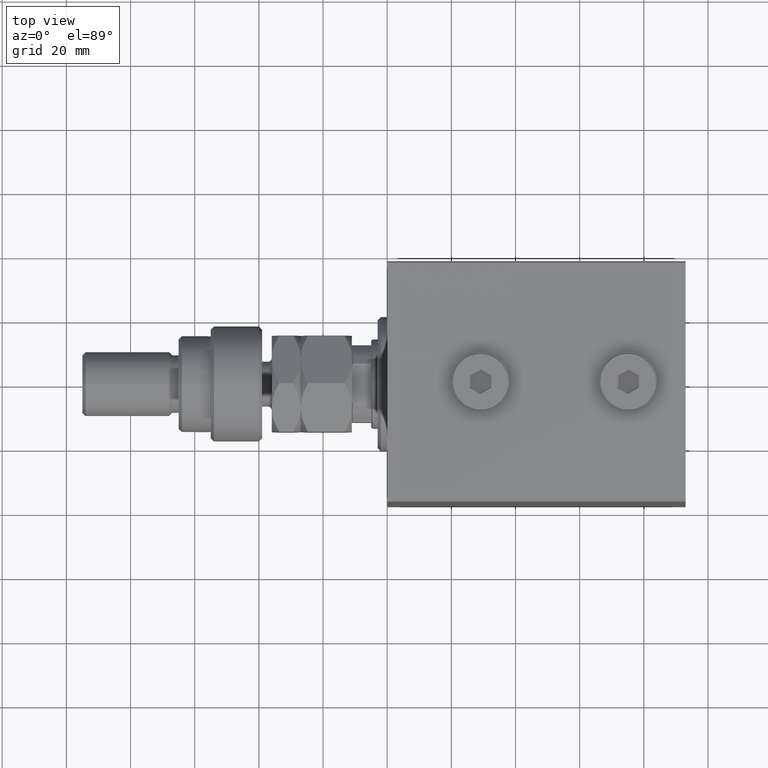
[diagram: clean part render]
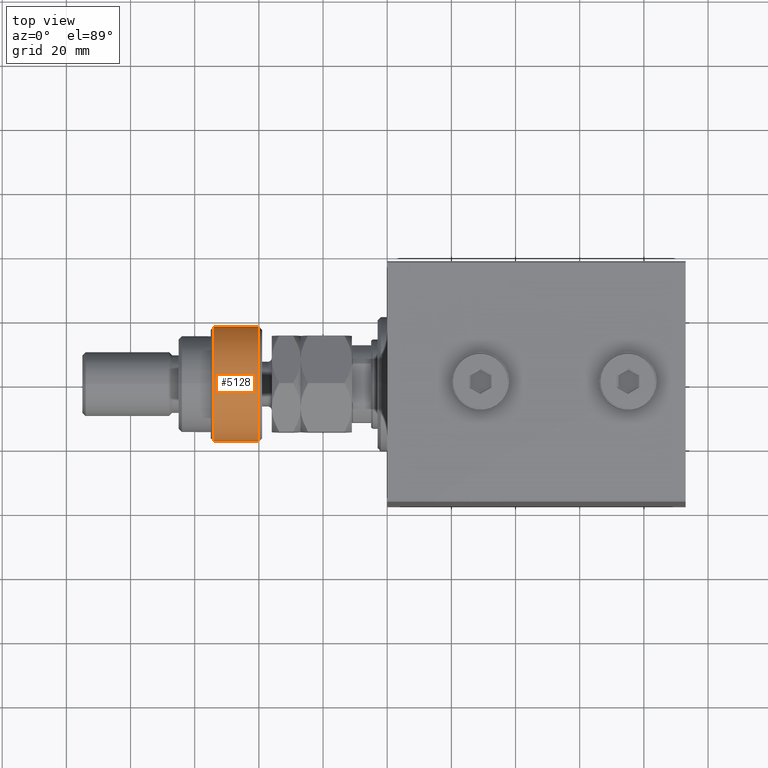
[diagram: same view with one face highlighted and labeled with its STEP entity id]
A machine part, top view. The second image highlights one B-rep face of the part: STEP entity #5128.
In plain terms, the highlighted cylindrical surface (partial cylindrical patch) has radius 18 mm, axis along (1, -0, -0).
Its self-contained STEP definition (entity closure, byte-faithful):
#2084 = VERTEX_POINT ( 'NONE', #22295 ) ;
#2465 = VECTOR ( 'NONE', #42803, 1000.000000000000000 ) ;
#5128 = ADVANCED_FACE ( 'NONE', ( #15944 ), #30840, .T. ) ;
#5793 = ORIENTED_EDGE ( 'NONE', *, *, #16625, .T. ) ;
#6072 = ORIENTED_EDGE ( 'NONE', *, *, #21247, .T. ) ;
#7897 = AXIS2_PLACEMENT_3D ( 'NONE', #10139, #25299, #25056 ) ;
#8398 = DIRECTION ( 'NONE',  ( 1.000000000000000000, 0.000000000000000000, 0.000000000000000000 ) ) ;
#10139 = CARTESIAN_POINT ( 'NONE',  ( 0.000000000000000000, 0.000000000000000000, 1.000000000000011324 ) ) ;
#12302 = CARTESIAN_POINT ( 'NONE',  ( 0.000000000000000000, 0.000000000000000000, 1.000000000000011324 ) ) ;
#12568 = CIRCLE ( 'NONE', #7897, 18.00000000000000000 ) ;
#13232 = DIRECTION ( 'NONE',  ( -1.000000000000000000, 0.000000000000000000, 0.000000000000000000 ) ) ;
#14687 = EDGE_CURVE ( 'NONE', #25025, #2084, #47629, .T. ) ;
#15648 = VECTOR ( 'NONE', #41561, 1000.000000000000000 ) ;
#15944 = FACE_OUTER_BOUND ( 'NONE', #25736, .T. ) ;
#16625 = EDGE_CURVE ( 'NONE', #2084, #38325, #33506, .T. ) ;
#17173 = CARTESIAN_POINT ( 'NONE',  ( -16.36306817195357155, 7.500000000000000000, 1.000000000000011324 ) ) ;
#17716 = ORIENTED_EDGE ( 'NONE', *, *, #14687, .T. ) ;
#20064 = DIRECTION ( 'NONE',  ( 1.000000000000000000, 0.000000000000000000, 0.000000000000000000 ) ) ;
#21247 = EDGE_CURVE ( 'NONE', #38325, #43894, #12568, .T. ) ;
#21869 = CARTESIAN_POINT ( 'NONE',  ( 18.00000000000000000, 0.000000000000000000, 1.000000000000011324 ) ) ;
#22295 = CARTESIAN_POINT ( 'NONE',  ( -16.36306817195357155, -7.500000000000000000, 14.99999999999999645 ) ) ;
#22744 = EDGE_CURVE ( 'NONE', #25025, #35481, #30819, .T. ) ;
#22913 = ORIENTED_EDGE ( 'NONE', *, *, #22744, .F. ) ;
#22978 = CARTESIAN_POINT ( 'NONE',  ( -16.36306817195357155, -7.500000000000000000, 17.50000000000000000 ) ) ;
#23516 = CARTESIAN_POINT ( 'NONE',  ( 0.000000000000000000, 0.000000000000000000, 16.00000000000000000 ) ) ;
#24489 = DIRECTION ( 'NONE',  ( -0.000000000000000000, -0.000000000000000000, -1.000000000000000000 ) ) ;
#25025 = VERTEX_POINT ( 'NONE', #38193 ) ;
#25056 = DIRECTION ( 'NONE',  ( 1.000000000000000000, 0.000000000000000000, 0.000000000000000000 ) ) ;
#25299 = DIRECTION ( 'NONE',  ( -0.000000000000000000, -0.000000000000000000, 1.000000000000000000 ) ) ;
#25736 = EDGE_LOOP ( 'NONE', ( #22913, #17716, #5793, #6072, #39189 ) ) ;
#26631 = AXIS2_PLACEMENT_3D ( 'NONE', #12302, #37980, #8398 ) ;
#28981 = CIRCLE ( 'NONE', #26631, 18.00000000000000000 ) ;
#30819 = LINE ( 'NONE', #41823, #2465 ) ;
#30840 = CYLINDRICAL_SURFACE ( 'NONE', #31000, 18.00000000000000000 ) ;
#31000 = AXIS2_PLACEMENT_3D ( 'NONE', #23516, #24489, #13232 ) ;
#33506 = LINE ( 'NONE', #22978, #15648 ) ;
#35481 = VERTEX_POINT ( 'NONE', #17173 ) ;
#35708 = CARTESIAN_POINT ( 'NONE',  ( 0.000000000000000000, 0.000000000000000000, 14.99999999999999645 ) ) ;
#37980 = DIRECTION ( 'NONE',  ( -0.000000000000000000, -0.000000000000000000, 1.000000000000000000 ) ) ;
#38193 = CARTESIAN_POINT ( 'NONE',  ( -16.36306817195357155, 7.500000000000000000, 14.99999999999999645 ) ) ;
#38325 = VERTEX_POINT ( 'NONE', #44967 ) ;
#39189 = ORIENTED_EDGE ( 'NONE', *, *, #44734, .T. ) ;
#41365 = AXIS2_PLACEMENT_3D ( 'NONE', #35708, #43047, #20064 ) ;
#41561 = DIRECTION ( 'NONE',  ( -0.000000000000000000, -0.000000000000000000, -1.000000000000000000 ) ) ;
#41823 = CARTESIAN_POINT ( 'NONE',  ( -16.36306817195357155, 7.500000000000000000, 17.50000000000000000 ) ) ;
#42803 = DIRECTION ( 'NONE',  ( -0.000000000000000000, -0.000000000000000000, -1.000000000000000000 ) ) ;
#43047 = DIRECTION ( 'NONE',  ( 0.000000000000000000, 0.000000000000000000, -1.000000000000000000 ) ) ;
#43894 = VERTEX_POINT ( 'NONE', #21869 ) ;
#44734 = EDGE_CURVE ( 'NONE', #43894, #35481, #28981, .T. ) ;
#44967 = CARTESIAN_POINT ( 'NONE',  ( -16.36306817195357155, -7.500000000000000000, 1.000000000000011324 ) ) ;
#47629 = CIRCLE ( 'NONE', #41365, 18.00000000000000000 ) ;